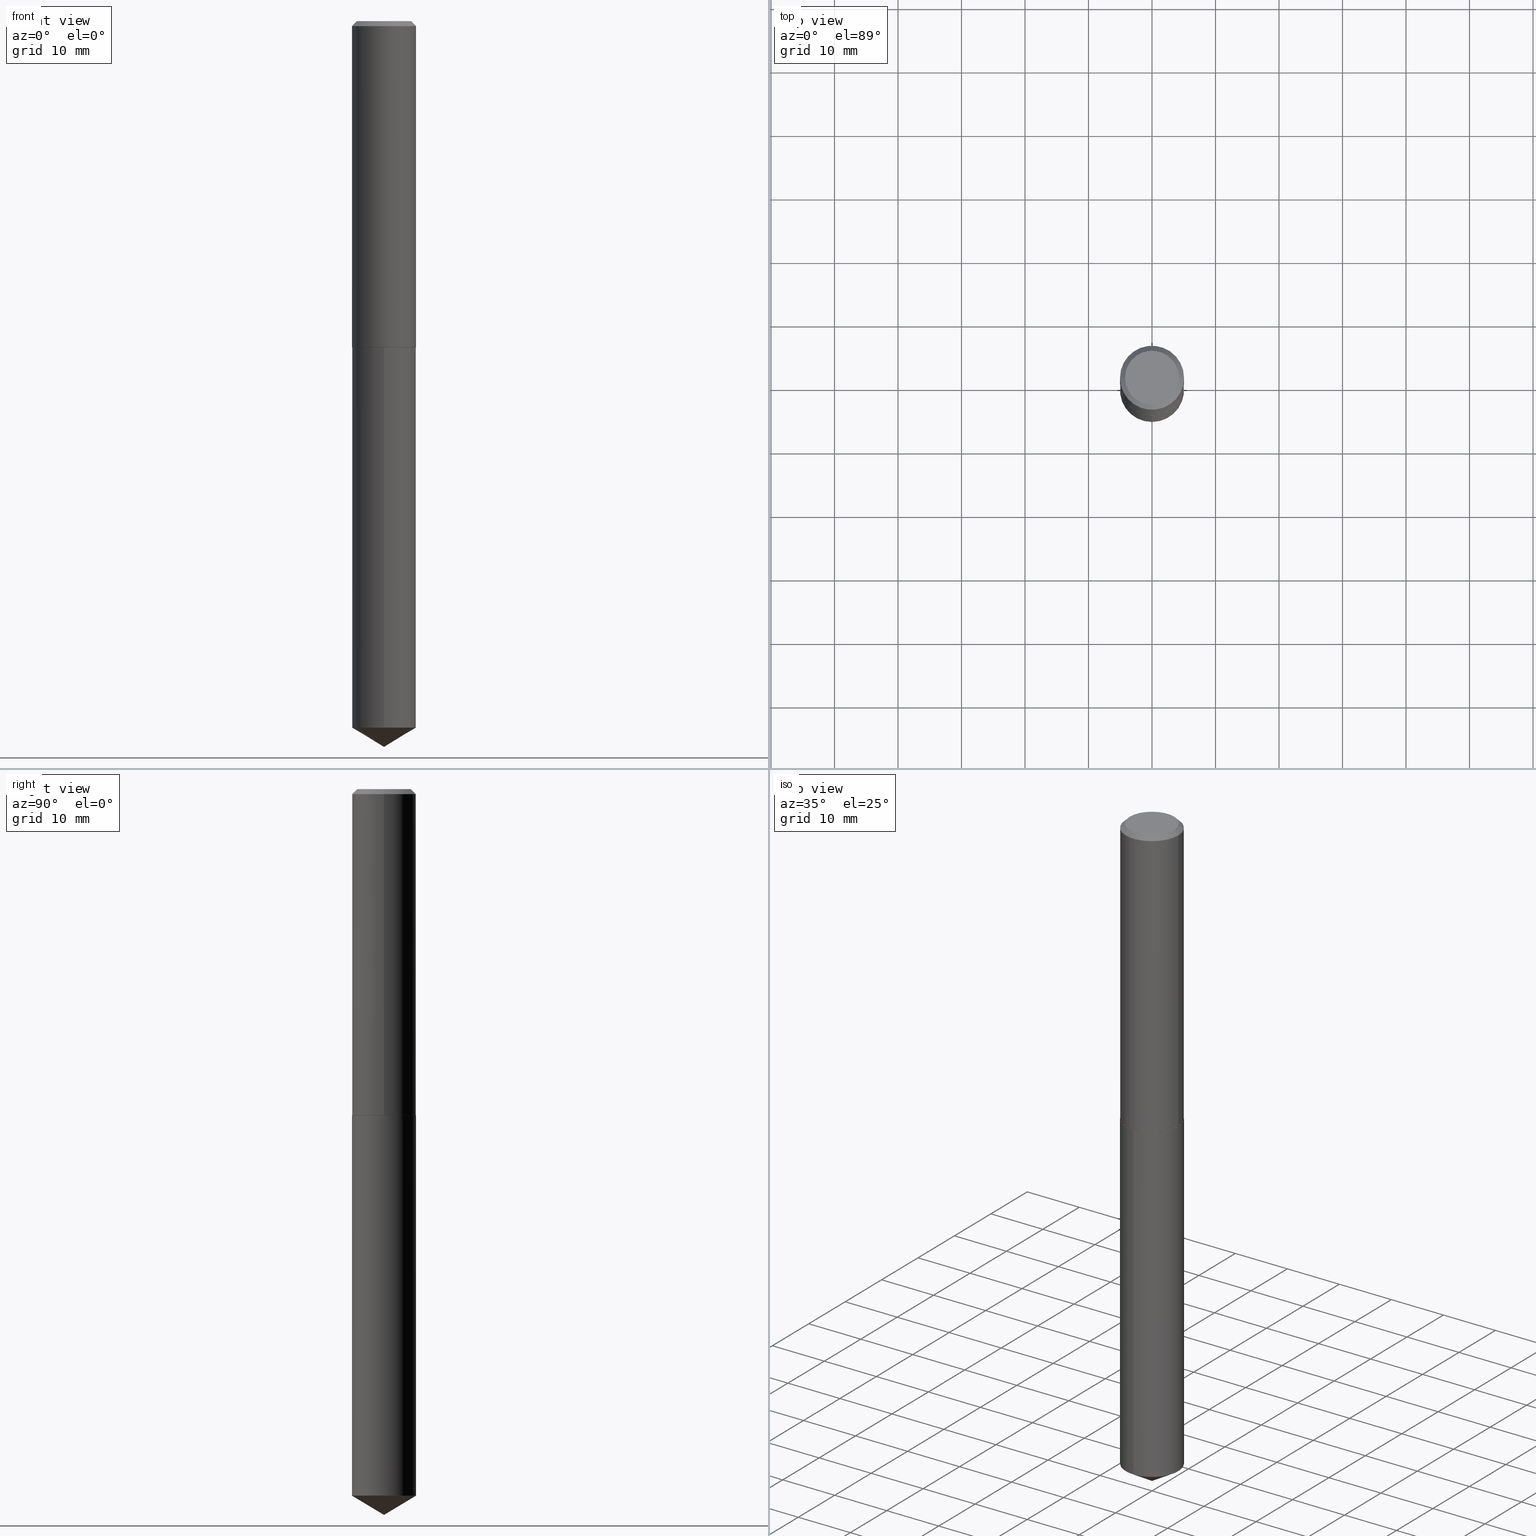
[diagram: canonical four-view strip — front | top / right | iso, engineering-drawing reading convention]
A machine part, canonical four-view strip (front | top / right | iso — engineering-drawing reading convention). The complete STEP part file that produces these views, byte-faithful:
ISO-10303-21;
HEADER;
FILE_DESCRIPTION (( 'STEP AP203' ),
    '1' );
FILE_NAME ('51224.STEP',
    '2024-04-22T18:42:41',
    ( '' ),
    ( '' ),
    'SwSTEP 2.0',
    'SolidWorks 2023',
    '' );
FILE_SCHEMA (( 'CONFIG_CONTROL_DESIGN' ));
ENDSEC;

DATA;
#1 = DIRECTION ( 'NONE',  ( 0.7071067811865452413, -7.319954787623248157E-15, -0.7071067811865497932 ) ) ;
#2 = ADVANCED_FACE ( 'NONE', ( #273 ), #164, .T. ) ;
#3 = CARTESIAN_POINT ( 'NONE',  ( -0.1985000000000000098, -2.173141828671334310E-15, -0.03125000000000020817 ) ) ;
#4 = DIRECTION ( 'NONE',  ( 1.000000000000000000, -6.982962677686265922E-15, 4.876176775795935793E-29 ) ) ;
#5 = CARTESIAN_POINT ( 'NONE',  ( -0.1672500000000000098, 1.222454903762451656E-15, 6.735557395226934810E-19 ) ) ;
#6 = EDGE_CURVE ( 'NONE', #223, #124, #109, .T. ) ;
#7 = APPROVAL_PERSON_ORGANIZATION ( #324, #56, #55 ) ;
#8 = ORIENTED_EDGE ( 'NONE', *, *, #99, .T. ) ;
#9 = DIRECTION ( 'NONE',  ( -2.445426262625076269E-29, 3.491542263642580928E-15, 1.000000000000000000 ) ) ;
#10 = FACE_OUTER_BOUND ( 'NONE', #387, .T. ) ;
#11 = CARTESIAN_POINT ( 'NONE',  ( 4.944737926106347490E-29, -7.059775267140842055E-15, -2.022000000000000242 ) ) ;
#12 = EDGE_CURVE ( 'NONE', #165, #295, #163, .T. ) ;
#13 = ORIENTED_EDGE ( 'NONE', *, *, #160, .F. ) ;
#14 = LENGTH_MEASURE_WITH_UNIT ( LENGTH_MEASURE( 0.02539999999999999897 ), #316 );
#15 = DIRECTION ( 'NONE',  ( 2.445468806185136597E-29, -3.491481338843145583E-15, -1.000000000000000000 ) ) ;
#16 = VERTEX_POINT ( 'NONE', #118 ) ;
#17 = CARTESIAN_POINT ( 'NONE',  ( 0.1985000000000001485, -1.386118091520724912E-15, 9.679210899954938883E-30 ) ) ;
#18 = APPROVAL_DATE_TIME ( #353, #254 ) ;
#19 = ADVANCED_FACE ( 'NONE', ( #262 ), #45, .T. ) ;
#20 = APPROVAL_STATUS ( 'not_yet_approved' ) ;
#21 = APPROVAL_DATE_TIME ( #294, #56 ) ;
#22 = PERSON_AND_ORGANIZATION_ROLE ( 'creator' ) ;
#23 = ORIENTED_EDGE ( 'NONE', *, *, #6, .T. ) ;
#24 = AXIS2_PLACEMENT_3D ( 'NONE', #298, #103, #357 ) ;
#25 = AXIS2_PLACEMENT_3D ( 'NONE', #338, #92, #214 ) ;
#26 = APPROVAL ( #144, 'UNSPECIFIED' ) ;
#27 = ORIENTED_EDGE ( 'NONE', *, *, #153, .T. ) ;
#28 = VERTEX_POINT ( 'NONE', #331 ) ;
#29 = EDGE_LOOP ( 'NONE', ( #307, #57, #116, #265 ) ) ;
#30 = DIRECTION ( 'NONE',  ( -2.445426262625076269E-29, 3.491542263642581322E-15, 1.000000000000000000 ) ) ;
#31 = ORIENTED_EDGE ( 'NONE', *, *, #246, .T. ) ;
#32 = CIRCLE ( 'NONE', #359, 0.1985000000000002873 ) ;
#33 = CARTESIAN_POINT ( 'NONE',  ( -1.647159550250147864E-47, 2.351707295243361190E-33, 6.735557395310516318E-19 ) ) ;
#34 = LINE ( 'NONE', #388, #225 ) ;
#35 = EDGE_LOOP ( 'NONE', ( #75, #27, #355 ) ) ;
#36 = LINE ( 'NONE', #127, #37 ) ;
#37 = VECTOR ( 'NONE', #30, 39.37007874015748143 ) ;
#38 = ORIENTED_EDGE ( 'NONE', *, *, #264, .F. ) ;
#39 = DIRECTION ( 'NONE',  ( -2.438088387897960049E-29, 3.491481338843145188E-15, 1.000000000000000000 ) ) ;
#40 = CIRCLE ( 'NONE', #181, 0.1672500000000000098 ) ;
#41 = DIRECTION ( 'NONE',  ( 1.000000000000000000, -6.982962677686267499E-15, 4.876141439944437457E-29 ) ) ;
#42 = CYLINDRICAL_SURFACE ( 'NONE', #201, 0.1985000000000000098 ) ;
#43 = ADVANCED_FACE ( 'NONE', ( #145 ), #88, .T. ) ;
#44 = ORIENTED_EDGE ( 'NONE', *, *, #86, .T. ) ;
#45 = CONICAL_SURFACE ( 'NONE', #24, 0.1985000000000002873, 0.7853981633973801113 ) ;
#46 = VECTOR ( 'NONE', #283, 39.37007874015748143 ) ;
#47 = ORIENTED_EDGE ( 'NONE', *, *, #215, .T. ) ;
#48 = DIRECTION ( 'NONE',  ( 1.000000000000000000, -6.982962677686266711E-15, 0.000000000000000000 ) ) ;
#49 = DIRECTION ( 'NONE',  ( -6.982962677686265922E-15, -1.000000000000000000, 4.128737521910725011E-15 ) ) ;
#50 = CARTESIAN_POINT ( 'NONE',  ( 1.100459173661143810E-28, -1.571169380650269840E-14, -4.500000000000000000 ) ) ;
#51 = DIRECTION ( 'NONE',  ( -1.000000000000000000, 6.982962677686265922E-15, 0.000000000000000000 ) ) ;
#52 = PERSON_AND_ORGANIZATION ( #196, #318 ) ;
#53 = LOCAL_TIME ( 14, 42, 41.00000000000000000, #58 ) ;
#54 = PERSON_AND_ORGANIZATION ( #196, #318 ) ;
#55 = APPROVAL_ROLE ( '' ) ;
#56 = APPROVAL ( #20, 'UNSPECIFIED' ) ;
#57 = ORIENTED_EDGE ( 'NONE', *, *, #182, .F. ) ;
#58 = COORDINATED_UNIVERSAL_TIME_OFFSET ( 5, 0, .BEHIND. ) ;
#59 = ORIENTED_EDGE ( 'NONE', *, *, #79, .F. ) ;
#60 = AXIS2_PLACEMENT_3D ( 'NONE', #74, #328, #49 ) ;
#61 = APPROVAL_PERSON_ORGANIZATION ( #111, #26, #237 ) ;
#62 = ORIENTED_EDGE ( 'NONE', *, *, #142, .F. ) ;
#63 = CARTESIAN_POINT ( 'NONE',  ( 1.100441818181284307E-28, -1.571194018639161713E-14, -4.500000000000000000 ) ) ;
#64 = ORIENTED_EDGE ( 'NONE', *, *, #246, .F. ) ;
#65 = FACE_OUTER_BOUND ( 'NONE', #158, .T. ) ;
#66 = DIRECTION ( 'NONE',  ( 6.982962677686265922E-15, 1.000000000000000000, -3.491542263642581322E-15 ) ) ;
#67 = DIRECTION ( 'NONE',  ( -6.982962677686265922E-15, -1.000000000000000000, 2.752491681273816674E-15 ) ) ;
#68 = CARTESIAN_POINT ( 'NONE',  ( 4.944737926106347490E-29, -7.059775267140842055E-15, -2.022000000000000242 ) ) ;
#69 = CC_DESIGN_DATE_AND_TIME_ASSIGNMENT ( #354, #87, ( #330 ) ) ;
#70 = AXIS2_PLACEMENT_3D ( 'NONE', #155, #192, #274 ) ;
#71 = FACE_OUTER_BOUND ( 'NONE', #212, .T. ) ;
#72 = ORIENTED_EDGE ( 'NONE', *, *, #264, .T. ) ;
#73 = FACE_OUTER_BOUND ( 'NONE', #311, .T. ) ;
#74 = CARTESIAN_POINT ( 'NONE',  ( 4.944737926106347490E-29, -7.059775267140842055E-15, -2.022000000000000242 ) ) ;
#75 = ORIENTED_EDGE ( 'NONE', *, *, #351, .F. ) ;
#76 = CYLINDRICAL_SURFACE ( 'NONE', #304, 0.1985000000000001485 ) ;
#77 = CIRCLE ( 'NONE', #128, 0.1985000000000000098 ) ;
#78 = AXIS2_PLACEMENT_3D ( 'NONE', #348, #233, #48 ) ;
#79 = EDGE_CURVE ( 'NONE', #170, #28, #296, .T. ) ;
#80 = DIRECTION ( 'NONE',  ( -2.445426262625076269E-29, 3.491542263642581322E-15, 1.000000000000000000 ) ) ;
#81 = PERSON_AND_ORGANIZATION ( #196, #318 ) ;
#82 = CALENDAR_DATE ( 2024, 22, 4 ) ;
#83 = CIRCLE ( 'NONE', #303, 0.1985000000000002873 ) ;
#84 = VECTOR ( 'NONE', #80, 39.37007874015748143 ) ;
#85 = PERSON_AND_ORGANIZATION_ROLE ( 'design_supplier' ) ;
#86 = EDGE_CURVE ( 'NONE', #389, #295, #287, .T. ) ;
#87 = DATE_TIME_ROLE ( 'classification_date' ) ;
#88 = CYLINDRICAL_SURFACE ( 'NONE', #139, 0.1985000000000000098 ) ;
#89 = DIRECTION ( 'NONE',  ( -2.445468806185136597E-29, 3.491481338843145583E-15, 1.000000000000000000 ) ) ;
#90 = LOCAL_TIME ( 14, 42, 41.00000000000000000, #115 ) ;
#91 = EDGE_LOOP ( 'NONE', ( #284, #102, #72, #321 ) ) ;
#92 = DIRECTION ( 'NONE',  ( -2.445426262625076269E-29, 3.491542263642580928E-15, 1.000000000000000000 ) ) ;
#93 = DIRECTION ( 'NONE',  ( 1.000000000000000000, -6.982962677686266711E-15, 4.876176775795935232E-29 ) ) ;
#94 = DIRECTION ( 'NONE',  ( -2.445426262625076269E-29, 3.491542263642580928E-15, 1.000000000000000000 ) ) ;
#95 = CARTESIAN_POINT ( 'NONE',  ( -0.1985000000000002873, -5.647602195987619247E-15, -2.021500000000000519 ) ) ;
#96 = VERTEX_POINT ( 'NONE', #323 ) ;
#97 = CARTESIAN_POINT ( 'NONE',  ( 1.410427330483906421E-15, 0.1984999999999929321, -2.022000000000001130 ) ) ;
#98 = UNCERTAINTY_MEASURE_WITH_UNIT (LENGTH_MEASURE( 1.000000000000000082E-05 ), #349, 'distance_accuracy_value', 'NONE');
#99 = EDGE_CURVE ( 'NONE', #96, #16, #289, .T. ) ;
#100 = FACE_OUTER_BOUND ( 'NONE', #227, .T. ) ;
#101 = CONICAL_SURFACE ( 'NONE', #25, 65.52281426576912793, 1.029744258676659197 ) ;
#102 = ORIENTED_EDGE ( 'NONE', *, *, #190, .T. ) ;
#103 = DIRECTION ( 'NONE',  ( -2.445468806185136597E-29, 3.491481338843145583E-15, 1.000000000000000000 ) ) ;
#104 = ORIENTED_EDGE ( 'NONE', *, *, #119, .T. ) ;
#105 =( NAMED_UNIT ( * ) PLANE_ANGLE_UNIT ( ) SI_UNIT ( $, .RADIAN. ) );
#106 = AXIS2_PLACEMENT_3D ( 'NONE', #367, #152, #305 ) ;
#107 = VECTOR ( 'NONE', #132, 39.37007874015748143 ) ;
#108 = ADVANCED_FACE ( 'NONE', ( #65 ), #276, .F. ) ;
#109 = LINE ( 'NONE', #137, #334 ) ;
#110 = ORIENTED_EDGE ( 'NONE', *, *, #351, .T. ) ;
#111 = PERSON_AND_ORGANIZATION ( #196, #318 ) ;
#112 = DATE_AND_TIME ( #382, #279 ) ;
#113 = EDGE_CURVE ( 'NONE', #28, #170, #213, .T. ) ;
#114 = APPROVAL_STATUS ( 'not_yet_approved' ) ;
#115 = COORDINATED_UNIVERSAL_TIME_OFFSET ( 5, 0, .BEHIND. ) ;
#116 = ORIENTED_EDGE ( 'NONE', *, *, #339, .T. ) ;
#117 = ORIENTED_EDGE ( 'NONE', *, *, #186, .T. ) ;
#118 = CARTESIAN_POINT ( 'NONE',  ( 1.410427330483905632E-15, 0.1984999999999846887, -4.380729167123031509 ) ) ;
#119 = EDGE_CURVE ( 'NONE', #96, #28, #36, .T. ) ;
#120 = ORIENTED_EDGE ( 'NONE', *, *, #215, .F. ) ;
#121 = CARTESIAN_POINT ( 'NONE',  ( 4.944737926106347490E-29, -7.059775267140842055E-15, -2.022000000000000242 ) ) ;
#122 = VECTOR ( 'NONE', #1, 39.37007874015748143 ) ;
#123 = DIRECTION ( 'NONE',  ( 1.000000000000000000, -6.982962677686266711E-15, 0.000000000000000000 ) ) ;
#124 = VERTEX_POINT ( 'NONE', #95 ) ;
#125 = CARTESIAN_POINT ( 'NONE',  ( 4.943515191703255249E-29, -7.058029526471420552E-15, -2.021500000000000519 ) ) ;
#126 = EDGE_CURVE ( 'NONE', #16, #96, #77, .T. ) ;
#127 = CARTESIAN_POINT ( 'NONE',  ( -1.386118091520674425E-15, -0.1985000000000070874, -2.021999999999999797 ) ) ;
#128 = AXIS2_PLACEMENT_3D ( 'NONE', #333, #244, #337 ) ;
#129 = VECTOR ( 'NONE', #371, 39.37007874015748143 ) ;
#130 = DIRECTION ( 'NONE',  ( -2.445468806185136877E-29, 3.491481338843145188E-15, 1.000000000000000000 ) ) ;
#131 = DIRECTION ( 'NONE',  ( -1.000000000000000000, 6.982962677686265922E-15, -4.876176775795935793E-29 ) ) ;
#132 = DIRECTION ( 'NONE',  ( -0.7071067811865452413, 2.468850131082233000E-15, -0.7071067811865497932 ) ) ;
#133 = AXIS2_PLACEMENT_3D ( 'NONE', #33, #216, #309 ) ;
#134 = DIRECTION ( 'NONE',  ( -1.000000000000000000, 6.982962677686265922E-15, 0.000000000000000000 ) ) ;
#135 = ORIENTED_EDGE ( 'NONE', *, *, #86, .F. ) ;
#136 = FACE_OUTER_BOUND ( 'NONE', #252, .T. ) ;
#137 = CARTESIAN_POINT ( 'NONE',  ( -0.1985000000000002873, -5.647602195987619247E-15, -2.021500000000000519 ) ) ;
#138 = ORIENTED_EDGE ( 'NONE', *, *, #153, .F. ) ;
#139 = AXIS2_PLACEMENT_3D ( 'NONE', #147, #166, #346 ) ;
#140 = PRODUCT_DEFINITION_SHAPE ( 'NONE', 'NONE',  #199 ) ;
#141 = DIRECTION ( 'NONE',  ( 1.000000000000000000, 0.000000000000000000, 0.000000000000000000 ) ) ;
#142 = EDGE_CURVE ( 'NONE', #235, #223, #180, .T. ) ;
#143 = APPLICATION_PROTOCOL_DEFINITION ( 'international standard', 'config_control_design', 1994, #362 ) ;
#144 = APPROVAL_STATUS ( 'not_yet_approved' ) ;
#145 = FACE_OUTER_BOUND ( 'NONE', #202, .T. ) ;
#146 = PRODUCT_DEFINITION_FORMATION_WITH_SPECIFIED_SOURCE ( 'ANY', '', #314, .NOT_KNOWN. ) ;
#147 = CARTESIAN_POINT ( 'NONE',  ( 4.944737926106347490E-29, -7.059775267140842055E-15, -2.022000000000000242 ) ) ;
#148 = DIRECTION ( 'NONE',  ( 1.000000000000000000, -6.982962677686265922E-15, 0.000000000000000000 ) ) ;
#149 = FACE_OUTER_BOUND ( 'NONE', #259, .T. ) ;
#150 = CLOSED_SHELL ( 'NONE', ( #43, #381, #258, #293, #242 ) ) ;
#151 = AXIS2_PLACEMENT_3D ( 'NONE', #226, #261, #286 ) ;
#152 = DIRECTION ( 'NONE',  ( -2.445468806185136597E-29, 3.491481338843145583E-15, 1.000000000000000000 ) ) ;
#153 = EDGE_CURVE ( 'NONE', #344, #96, #335, .T. ) ;
#154 = ORIENTED_EDGE ( 'NONE', *, *, #236, .T. ) ;
#155 = CARTESIAN_POINT ( 'NONE',  ( 4.944737926106347490E-29, -7.059775267140842055E-15, -2.022000000000000242 ) ) ;
#156 = DIRECTION ( 'NONE',  ( 1.000000000000000000, -6.982962677686266711E-15, 0.000000000000000000 ) ) ;
#157 = APPROVAL_PERSON_ORGANIZATION ( #209, #254, #171 ) ;
#158 = EDGE_LOOP ( 'NONE', ( #62, #301 ) ) ;
#159 = CARTESIAN_POINT ( 'NONE',  ( 0.1980000000000004534, -8.442401877322725736E-15, -2.022000000000000242 ) ) ;
#160 = EDGE_CURVE ( 'NONE', #295, #165, #208, .T. ) ;
#161 = EDGE_LOOP ( 'NONE', ( #217, #243 ) ) ;
#162 = CARTESIAN_POINT ( 'NONE',  ( 7.642090019328602662E-31, -1.091087918388490267E-16, -0.03125000000000020817 ) ) ;
#163 = CIRCLE ( 'NONE', #372, 0.1985000000000000098 ) ;
#164 = CONICAL_SURFACE ( 'NONE', #342, 0.1985000000000000098, 0.7853981633974450594 ) ;
#165 = VERTEX_POINT ( 'NONE', #3 ) ;
#166 = DIRECTION ( 'NONE',  ( -2.445426262625076269E-29, 3.491542263642580928E-15, 1.000000000000000000 ) ) ;
#167 = CC_DESIGN_DATE_AND_TIME_ASSIGNMENT ( #172, #269, ( #199 ) ) ;
#168 = ORIENTED_EDGE ( 'NONE', *, *, #119, .F. ) ;
#169 = DIRECTION ( 'NONE',  ( 2.438088387897960049E-29, -3.491481338843145188E-15, -1.000000000000000000 ) ) ;
#170 = VERTEX_POINT ( 'NONE', #97 ) ;
#171 = APPROVAL_ROLE ( '' ) ;
#172 = DATE_AND_TIME ( #82, #90 ) ;
#173 = CIRCLE ( 'NONE', #133, 0.1672500000000000098 ) ;
#174 = ADVANCED_FACE ( 'NONE', ( #149 ), #275, .T. ) ;
#175 = LOCAL_TIME ( 14, 42, 41.00000000000000000, #239 ) ;
#176 = CALENDAR_DATE ( 2024, 22, 4 ) ;
#177 = SHAPE_DEFINITION_REPRESENTATION ( #140, #234 ) ;
#178 = ORIENTED_EDGE ( 'NONE', *, *, #306, .T. ) ;
#179 = COORDINATED_UNIVERSAL_TIME_OFFSET ( 5, 0, .BEHIND. ) ;
#180 = CIRCLE ( 'NONE', #245, 0.1980000000000004534 ) ;
#181 = AXIS2_PLACEMENT_3D ( 'NONE', #195, #228, #41 ) ;
#182 = EDGE_CURVE ( 'NONE', #240, #358, #173, .T. ) ;
#183 = ORIENTED_EDGE ( 'NONE', *, *, #142, .T. ) ;
#184 = CARTESIAN_POINT ( 'NONE',  ( 0.1985000000000002873, -8.444147617992146450E-15, -2.021500000000000519 ) ) ;
#185 = DIRECTION ( 'NONE',  ( -2.445468806185136597E-29, 3.491481338843145583E-15, 1.000000000000000000 ) ) ;
#186 = EDGE_CURVE ( 'NONE', #124, #389, #32, .T. ) ;
#187 = AXIS2_PLACEMENT_3D ( 'NONE', #268, #206, #141 ) ;
#188 = LINE ( 'NONE', #277, #122 ) ;
#189 = DIRECTION ( 'NONE',  ( -2.445468806185136597E-29, 3.491481338843145583E-15, 1.000000000000000000 ) ) ;
#190 = EDGE_CURVE ( 'NONE', #223, #235, #257, .T. ) ;
#191 = EDGE_LOOP ( 'NONE', ( #347, #154, #356, #197 ) ) ;
#192 = DIRECTION ( 'NONE',  ( -2.445468806185136597E-29, 3.491481338843145583E-15, 1.000000000000000000 ) ) ;
#193 = AXIS2_PLACEMENT_3D ( 'NONE', #222, #300, #93 ) ;
#194 = CC_DESIGN_PERSON_AND_ORGANIZATION_ASSIGNMENT ( #54, #383, ( #330 ) ) ;
#195 = CARTESIAN_POINT ( 'NONE',  ( -1.647159550250147864E-47, 2.351707295243361190E-33, 6.735557395310516318E-19 ) ) ;
#196 = PERSON ( 'UNSPECIFIED', 'UNSPECIFIED', 'UNSPECIFIED', ('UNSPECIFIED'), ('UNSPECIFIED'), ('UNSPECIFIED') ) ;
#197 = ORIENTED_EDGE ( 'NONE', *, *, #339, .F. ) ;
#198 = CARTESIAN_POINT ( 'NONE',  ( 0.1672500000000000098, -1.309167967261893481E-15, 6.735557395397126350E-19 ) ) ;
#199 = PRODUCT_DEFINITION ( 'UNKNOWN', '', #146, #341 ) ;
#200 = AXIS2_PLACEMENT_3D ( 'NONE', #272, #386, #67 ) ;
#201 = AXIS2_PLACEMENT_3D ( 'NONE', #11, #9, #374 ) ;
#202 = EDGE_LOOP ( 'NONE', ( #8, #375, #230, #168 ) ) ;
#203 = CARTESIAN_POINT ( 'NONE',  ( 0.1985000000000000098, -1.495226883359573027E-15, -0.03125000000000020817 ) ) ;
#204 = DIRECTION ( 'NONE',  ( -2.445468806185136597E-29, 3.491481338843145583E-15, 1.000000000000000000 ) ) ;
#205 = CARTESIAN_POINT ( 'NONE',  ( 7.642090019328602662E-31, -1.091087918388490267E-16, -0.03125000000000020817 ) ) ;
#206 = DIRECTION ( 'NONE',  ( 0.000000000000000000, 0.000000000000000000, 1.000000000000000000 ) ) ;
#207 = APPROVAL_DATE_TIME ( #112, #26 ) ;
#208 = CIRCLE ( 'NONE', #106, 0.1985000000000000098 ) ;
#209 = PERSON_AND_ORGANIZATION ( #196, #318 ) ;
#210 = CALENDAR_DATE ( 2024, 22, 4 ) ;
#211 = CC_DESIGN_PERSON_AND_ORGANIZATION_ASSIGNMENT ( #270, #325, ( #146 ) ) ;
#212 = EDGE_LOOP ( 'NONE', ( #319, #373, #104, #59 ) ) ;
#213 = CIRCLE ( 'NONE', #266, 0.1985000000000000098 ) ;
#214 = DIRECTION ( 'NONE',  ( -6.982962677686265922E-15, -1.000000000000000000, 3.468864327941557532E-15 ) ) ;
#215 = EDGE_CURVE ( 'NONE', #389, #124, #83, .T. ) ;
#216 = DIRECTION ( 'NONE',  ( -2.445468806185136597E-29, 3.491481338843145583E-15, 1.000000000000000000 ) ) ;
#217 = ORIENTED_EDGE ( 'NONE', *, *, #113, .T. ) ;
#218 = CC_DESIGN_PERSON_AND_ORGANIZATION_ASSIGNMENT ( #238, #85, ( #146 ) ) ;
#219 = CARTESIAN_POINT ( 'NONE',  ( 4.944737926106347490E-29, -7.059775267140842055E-15, -2.022000000000000242 ) ) ;
#220 = CC_DESIGN_SECURITY_CLASSIFICATION ( #330, ( #146 ) ) ;
#221 = CARTESIAN_POINT ( 'NONE',  ( 4.943515191703255249E-29, -7.058029526471420552E-15, -2.021500000000000519 ) ) ;
#222 = CARTESIAN_POINT ( 'NONE',  ( 0.000000000000000000, 0.000000000000000000, 0.000000000000000000 ) ) ;
#223 = VERTEX_POINT ( 'NONE', #302 ) ;
#224 = FACE_OUTER_BOUND ( 'NONE', #29, .T. ) ;
#225 = VECTOR ( 'NONE', #130, 39.37007874015748143 ) ;
#226 = CARTESIAN_POINT ( 'NONE',  ( -8.527212030790698780E-28, 1.217504768477489314E-13, 34.87007874015748143 ) ) ;
#227 = EDGE_LOOP ( 'NONE', ( #183, #23, #120, #38 ) ) ;
#228 = DIRECTION ( 'NONE',  ( -2.445468806185136597E-29, 3.491481338843145583E-15, 1.000000000000000000 ) ) ;
#229 = ORIENTED_EDGE ( 'NONE', *, *, #182, .T. ) ;
#230 = ORIENTED_EDGE ( 'NONE', *, *, #113, .F. ) ;
#231 = CARTESIAN_POINT ( 'NONE',  ( 0.000000000000000000, 0.000000000000000000, 0.000000000000000000 ) ) ;
#232 = CC_DESIGN_APPROVAL ( #56, ( #199 ) ) ;
#233 = DIRECTION ( 'NONE',  ( -2.445468806185136597E-29, 3.491481338843145583E-15, 1.000000000000000000 ) ) ;
#234 = ADVANCED_BREP_SHAPE_REPRESENTATION ( '51224', ( #255, #377, #187 ), #310 ) ;
#235 = VERTEX_POINT ( 'NONE', #159 ) ;
#236 = EDGE_CURVE ( 'NONE', #358, #295, #188, .T. ) ;
#237 = APPROVAL_ROLE ( '' ) ;
#238 = PERSON_AND_ORGANIZATION ( #196, #318 ) ;
#239 = COORDINATED_UNIVERSAL_TIME_OFFSET ( 5, 0, .BEHIND. ) ;
#240 = VERTEX_POINT ( 'NONE', #5 ) ;
#241 = COORDINATED_UNIVERSAL_TIME_OFFSET ( 5, 0, .BEHIND. ) ;
#242 = ADVANCED_FACE ( 'NONE', ( #248 ), #365, .F. ) ;
#243 = ORIENTED_EDGE ( 'NONE', *, *, #79, .T. ) ;
#244 = DIRECTION ( 'NONE',  ( -2.445426262625076269E-29, 3.491542263642580928E-15, 1.000000000000000000 ) ) ;
#245 = AXIS2_PLACEMENT_3D ( 'NONE', #68, #363, #249 ) ;
#246 = EDGE_CURVE ( 'NONE', #124, #165, #34, .T. ) ;
#247 = CARTESIAN_POINT ( 'NONE',  ( 4.944737926106347490E-29, -7.059775267140842055E-15, -2.022000000000000242 ) ) ;
#248 = FACE_OUTER_BOUND ( 'NONE', #161, .T. ) ;
#249 = DIRECTION ( 'NONE',  ( 1.000000000000000000, -6.982962677686268288E-15, 0.000000000000000000 ) ) ;
#250 = AXIS2_PLACEMENT_3D ( 'NONE', #247, #39, #4 ) ;
#251 = FACE_OUTER_BOUND ( 'NONE', #35, .T. ) ;
#252 = EDGE_LOOP ( 'NONE', ( #229, #178 ) ) ;
#253 =( NAMED_UNIT ( * ) SI_UNIT ( $, .STERADIAN. ) SOLID_ANGLE_UNIT ( ) );
#254 = APPROVAL ( #114, 'UNSPECIFIED' ) ;
#255 = MANIFOLD_SOLID_BREP ( 'Body-Move/Copy2[1]', #150 ) ;
#256 = LINE ( 'NONE', #50, #129 ) ;
#257 = CIRCLE ( 'NONE', #70, 0.1980000000000004534 ) ;
#258 = ADVANCED_FACE ( 'NONE', ( #251 ), #101, .T. ) ;
#259 = EDGE_LOOP ( 'NONE', ( #64, #117, #44, #280 ) ) ;
#260 = PRODUCT_RELATED_PRODUCT_CATEGORY ( 'detail', '', ( #314 ) ) ;
#261 = DIRECTION ( 'NONE',  ( -2.445426262625076269E-29, 3.491542263642580928E-15, 1.000000000000000000 ) ) ;
#262 = FACE_OUTER_BOUND ( 'NONE', #91, .T. ) ;
#263 = CARTESIAN_POINT ( 'NONE',  ( 1.100441818181284307E-28, -1.571194018639161713E-14, -4.500000000000000000 ) ) ;
#264 = EDGE_CURVE ( 'NONE', #235, #389, #332, .T. ) ;
#265 = ORIENTED_EDGE ( 'NONE', *, *, #12, .T. ) ;
#266 = AXIS2_PLACEMENT_3D ( 'NONE', #121, #94, #368 ) ;
#267 = AXIS2_PLACEMENT_3D ( 'NONE', #312, #169, #131 ) ;
#268 = CARTESIAN_POINT ( 'NONE',  ( 0.000000000000000000, 0.000000000000000000, 0.000000000000000000 ) ) ;
#269 = DATE_TIME_ROLE ( 'creation_date' ) ;
#270 = PERSON_AND_ORGANIZATION ( #196, #318 ) ;
#271 = CONICAL_SURFACE ( 'NONE', #78, 0.1985000000000002873, 0.7853981633973801113 ) ;
#272 = CARTESIAN_POINT ( 'NONE',  ( 1.071283617780877760E-28, -1.529537784263736795E-14, -4.380729167123030621 ) ) ;
#273 = FACE_OUTER_BOUND ( 'NONE', #191, .T. ) ;
#274 = DIRECTION ( 'NONE',  ( 1.000000000000000000, -6.982962677686268288E-15, 0.000000000000000000 ) ) ;
#275 = CYLINDRICAL_SURFACE ( 'NONE', #193, 0.1985000000000001485 ) ;
#276 = PLANE ( 'NONE',  #250 ) ;
#277 = CARTESIAN_POINT ( 'NONE',  ( 0.1985000000000000098, -1.470917644396498212E-15, -0.03125000000000020817 ) ) ;
#278 = VECTOR ( 'NONE', #308, 39.37007874015748854 ) ;
#279 = LOCAL_TIME ( 14, 42, 41.00000000000000000, #179 ) ;
#280 = ORIENTED_EDGE ( 'NONE', *, *, #12, .F. ) ;
#281 = CARTESIAN_POINT ( 'NONE',  ( -0.1985000000000000098, 1.277009299681874826E-15, -0.03125000000000020817 ) ) ;
#282 = DIMENSIONAL_EXPONENTS ( 1.000000000000000000, 0.000000000000000000, 0.000000000000000000, 0.000000000000000000, 0.000000000000000000, 0.000000000000000000, 0.000000000000000000 ) ;
#283 = DIRECTION ( 'NONE',  ( 0.7071067811864992780, -2.468850131081751401E-15, 0.7071067811865957564 ) ) ;
#284 = ORIENTED_EDGE ( 'NONE', *, *, #6, .F. ) ;
#285 = PLANE ( 'NONE',  #267 ) ;
#286 = DIRECTION ( 'NONE',  ( -6.982962677686265922E-15, -1.000000000000000000, 3.468864327941557532E-15 ) ) ;
#287 = LINE ( 'NONE', #17, #384 ) ;
#288 = CALENDAR_DATE ( 2024, 22, 4 ) ;
#289 = CIRCLE ( 'NONE', #200, 0.1985000000000000098 ) ;
#290 = CC_DESIGN_APPROVAL ( #26, ( #146 ) ) ;
#291 = MECHANICAL_CONTEXT ( 'NONE', #369, 'mechanical' ) ;
#292 = PERSON_AND_ORGANIZATION_ROLE ( 'design_owner' ) ;
#293 = ADVANCED_FACE ( 'NONE', ( #71 ), #42, .T. ) ;
#294 = DATE_AND_TIME ( #176, #53 ) ;
#295 = VERTEX_POINT ( 'NONE', #203 ) ;
#296 = CIRCLE ( 'NONE', #60, 0.1985000000000000098 ) ;
#297 = CONICAL_SURFACE ( 'NONE', #151, 65.52281426576912793, 1.029744258676659197 ) ;
#298 = CARTESIAN_POINT ( 'NONE',  ( 4.943515191703255249E-29, -7.058029526471420552E-15, -2.021500000000000519 ) ) ;
#299 = ADVANCED_FACE ( 'NONE', ( #136 ), #285, .F. ) ;
#300 = DIRECTION ( 'NONE',  ( -2.445468806185136597E-29, 3.491481338843145583E-15, 1.000000000000000000 ) ) ;
#301 = ORIENTED_EDGE ( 'NONE', *, *, #190, .F. ) ;
#302 = CARTESIAN_POINT ( 'NONE',  ( -0.1980000000000004534, -5.650251423161728870E-15, -2.022000000000000242 ) ) ;
#303 = AXIS2_PLACEMENT_3D ( 'NONE', #125, #189, #156 ) ;
#304 = AXIS2_PLACEMENT_3D ( 'NONE', #231, #204, #376 ) ;
#305 = DIRECTION ( 'NONE',  ( 1.000000000000000000, -6.982962677686265922E-15, 0.000000000000000000 ) ) ;
#306 = EDGE_CURVE ( 'NONE', #358, #240, #40, .T. ) ;
#307 = ORIENTED_EDGE ( 'NONE', *, *, #236, .F. ) ;
#308 = DIRECTION ( 'NONE',  ( -5.985567269335959423E-15, -0.8571673007021128887, 0.5150380749100530453 ) ) ;
#309 = DIRECTION ( 'NONE',  ( 1.000000000000000000, -6.982962677686267499E-15, 4.876141439944437457E-29 ) ) ;
#310 =( GEOMETRIC_REPRESENTATION_CONTEXT ( 3 ) GLOBAL_UNCERTAINTY_ASSIGNED_CONTEXT ( ( #98 ) ) GLOBAL_UNIT_ASSIGNED_CONTEXT ( ( #349, #105, #253 ) ) REPRESENTATION_CONTEXT ( 'NONE', 'WORKASPACE' ) );
#311 = EDGE_LOOP ( 'NONE', ( #138, #110, #315 ) ) ;
#312 = CARTESIAN_POINT ( 'NONE',  ( -8.235797751250739320E-48, 1.175853647621680595E-33, 3.367778697655258159E-19 ) ) ;
#313 = EDGE_CURVE ( 'NONE', #16, #170, #320, .T. ) ;
#314 = PRODUCT ( '51224', '51224', '', ( #291 ) ) ;
#315 = ORIENTED_EDGE ( 'NONE', *, *, #99, .F. ) ;
#316 =( LENGTH_UNIT ( ) NAMED_UNIT ( * ) SI_UNIT ( $, .METRE. ) );
#317 = DIRECTION ( 'NONE',  ( -0.7071067811864992780, 7.493145998870180611E-15, 0.7071067811865957564 ) ) ;
#318 = ORGANIZATION ( 'UNSPECIFIED', 'UNSPECIFIED', '' ) ;
#319 = ORIENTED_EDGE ( 'NONE', *, *, #313, .F. ) ;
#320 = LINE ( 'NONE', #345, #84 ) ;
#321 = ORIENTED_EDGE ( 'NONE', *, *, #186, .F. ) ;
#322 = DIRECTION ( 'NONE',  ( 2.445468806185136597E-29, -3.491481338843145583E-15, -1.000000000000000000 ) ) ;
#323 = CARTESIAN_POINT ( 'NONE',  ( -1.386118091520616444E-15, -0.1985000000000152753, -4.380729167123029733 ) ) ;
#324 = PERSON_AND_ORGANIZATION ( #196, #318 ) ;
#325 = PERSON_AND_ORGANIZATION_ROLE ( 'creator' ) ;
#326 = ADVANCED_FACE ( 'NONE', ( #10 ), #76, .T. ) ;
#327 = SECURITY_CLASSIFICATION_LEVEL ( 'unclassified' ) ;
#328 = DIRECTION ( 'NONE',  ( -2.445426262625076269E-29, 3.491542263642580928E-15, 1.000000000000000000 ) ) ;
#329 = ADVANCED_FACE ( 'NONE', ( #224 ), #352, .T. ) ;
#330 = SECURITY_CLASSIFICATION ( '', '', #327 ) ;
#331 = CARTESIAN_POINT ( 'NONE',  ( -1.386118091520674425E-15, -0.1985000000000070874, -2.021999999999999797 ) ) ;
#332 = LINE ( 'NONE', #184, #46 ) ;
#333 = CARTESIAN_POINT ( 'NONE',  ( 1.071283617780877760E-28, -1.529537784263736795E-14, -4.380729167123030621 ) ) ;
#334 = VECTOR ( 'NONE', #317, 39.37007874015748143 ) ;
#335 = LINE ( 'NONE', #63, #278 ) ;
#336 = CC_DESIGN_PERSON_AND_ORGANIZATION_ASSIGNMENT ( #81, #292, ( #314 ) ) ;
#337 = DIRECTION ( 'NONE',  ( -6.982962677686265922E-15, -1.000000000000000000, 2.752491681273816674E-15 ) ) ;
#338 = CARTESIAN_POINT ( 'NONE',  ( -8.527212030790698780E-28, 1.217504768477489314E-13, 34.87007874015748143 ) ) ;
#339 = EDGE_CURVE ( 'NONE', #240, #165, #340, .T. ) ;
#340 = LINE ( 'NONE', #281, #107 ) ;
#341 = DESIGN_CONTEXT ( 'detailed design', #362, 'design' ) ;
#342 = AXIS2_PLACEMENT_3D ( 'NONE', #379, #15, #51 ) ;
#343 = CARTESIAN_POINT ( 'NONE',  ( 0.1985000000000002873, -8.444147617992146450E-15, -2.021500000000000519 ) ) ;
#344 = VERTEX_POINT ( 'NONE', #263 ) ;
#345 = CARTESIAN_POINT ( 'NONE',  ( 1.410427330483848242E-15, 0.1984999999999929321, -2.022000000000001130 ) ) ;
#346 = DIRECTION ( 'NONE',  ( -6.982962677686265922E-15, -1.000000000000000000, 4.128737521910725011E-15 ) ) ;
#347 = ORIENTED_EDGE ( 'NONE', *, *, #306, .F. ) ;
#348 = CARTESIAN_POINT ( 'NONE',  ( 4.943515191703255249E-29, -7.058029526471420552E-15, -2.021500000000000519 ) ) ;
#349 =( CONVERSION_BASED_UNIT ( 'INCH', #14 ) LENGTH_UNIT ( ) NAMED_UNIT ( #282 ) );
#350 = DIRECTION ( 'NONE',  ( -2.445468806185136877E-29, 3.491481338843145188E-15, 1.000000000000000000 ) ) ;
#351 = EDGE_CURVE ( 'NONE', #344, #16, #256, .T. ) ;
#352 = CONICAL_SURFACE ( 'NONE', #380, 0.1985000000000000098, 0.7853981633974450594 ) ;
#353 = DATE_AND_TIME ( #210, #175 ) ;
#354 = DATE_AND_TIME ( #288, #360 ) ;
#355 = ORIENTED_EDGE ( 'NONE', *, *, #126, .F. ) ;
#356 = ORIENTED_EDGE ( 'NONE', *, *, #160, .T. ) ;
#357 = DIRECTION ( 'NONE',  ( 1.000000000000000000, -6.982962677686266711E-15, 0.000000000000000000 ) ) ;
#358 = VERTEX_POINT ( 'NONE', #198 ) ;
#359 = AXIS2_PLACEMENT_3D ( 'NONE', #221, #185, #123 ) ;
#360 = LOCAL_TIME ( 14, 42, 41.00000000000000000, #241 ) ;
#361 = DIRECTION ( 'NONE',  ( 2.445426262625075709E-29, -3.491542263642581322E-15, -1.000000000000000000 ) ) ;
#362 = APPLICATION_CONTEXT ( 'configuration controlled 3d designs of mechanical parts and assemblies' ) ;
#363 = DIRECTION ( 'NONE',  ( -2.445468806185136597E-29, 3.491481338843145583E-15, 1.000000000000000000 ) ) ;
#364 = ADVANCED_FACE ( 'NONE', ( #100 ), #271, .T. ) ;
#365 = PLANE ( 'NONE',  #390 ) ;
#366 = CLOSED_SHELL ( 'NONE', ( #2, #326, #364, #108, #19, #174, #329, #299 ) ) ;
#367 = CARTESIAN_POINT ( 'NONE',  ( 7.642090019328602662E-31, -1.091087918388490267E-16, -0.03125000000000020817 ) ) ;
#368 = DIRECTION ( 'NONE',  ( -6.982962677686265922E-15, -1.000000000000000000, 4.128737521910725011E-15 ) ) ;
#369 = APPLICATION_CONTEXT ( 'configuration controlled 3d designs of mechanical parts and assemblies' ) ;
#370 = APPLICATION_PROTOCOL_DEFINITION ( 'international standard', 'config_control_design', 1994, #369 ) ;
#371 = DIRECTION ( 'NONE',  ( 6.090539988449797368E-15, 0.8571673007021165525, 0.5150380749100471611 ) ) ;
#372 = AXIS2_PLACEMENT_3D ( 'NONE', #205, #89, #148 ) ;
#373 = ORIENTED_EDGE ( 'NONE', *, *, #126, .T. ) ;
#374 = DIRECTION ( 'NONE',  ( -6.982962677686265922E-15, -1.000000000000000000, 4.128737521910725011E-15 ) ) ;
#375 = ORIENTED_EDGE ( 'NONE', *, *, #313, .T. ) ;
#376 = DIRECTION ( 'NONE',  ( 1.000000000000000000, -6.982962677686266711E-15, 4.876176775795935232E-29 ) ) ;
#377 = MANIFOLD_SOLID_BREP ( 'Body-Move/Copy2[2]', #366 ) ;
#378 = CC_DESIGN_PERSON_AND_ORGANIZATION_ASSIGNMENT ( #52, #22, ( #199 ) ) ;
#379 = CARTESIAN_POINT ( 'NONE',  ( 7.642090019328602662E-31, -1.091087918388490267E-16, -0.03125000000000020817 ) ) ;
#380 = AXIS2_PLACEMENT_3D ( 'NONE', #162, #322, #134 ) ;
#381 = ADVANCED_FACE ( 'NONE', ( #73 ), #297, .T. ) ;
#382 = CALENDAR_DATE ( 2024, 22, 4 ) ;
#383 = PERSON_AND_ORGANIZATION_ROLE ( 'classification_officer' ) ;
#384 = VECTOR ( 'NONE', #350, 39.37007874015748143 ) ;
#385 = CC_DESIGN_APPROVAL ( #254, ( #330 ) ) ;
#386 = DIRECTION ( 'NONE',  ( -2.445426262625076269E-29, 3.491542263642580928E-15, 1.000000000000000000 ) ) ;
#387 = EDGE_LOOP ( 'NONE', ( #47, #31, #13, #135 ) ) ;
#388 = CARTESIAN_POINT ( 'NONE',  ( -0.1985000000000001485, 1.410427330483799924E-15, -9.764086154155995580E-30 ) ) ;
#389 = VERTEX_POINT ( 'NONE', #343 ) ;
#390 = AXIS2_PLACEMENT_3D ( 'NONE', #219, #361, #66 ) ;
ENDSEC;
END-ISO-10303-21;
